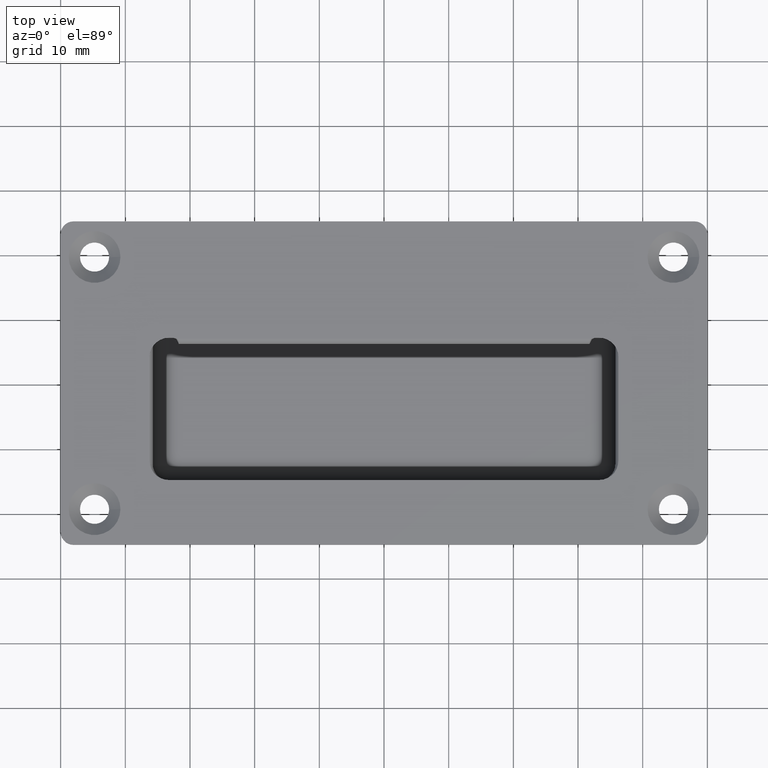
[diagram: clean part render]
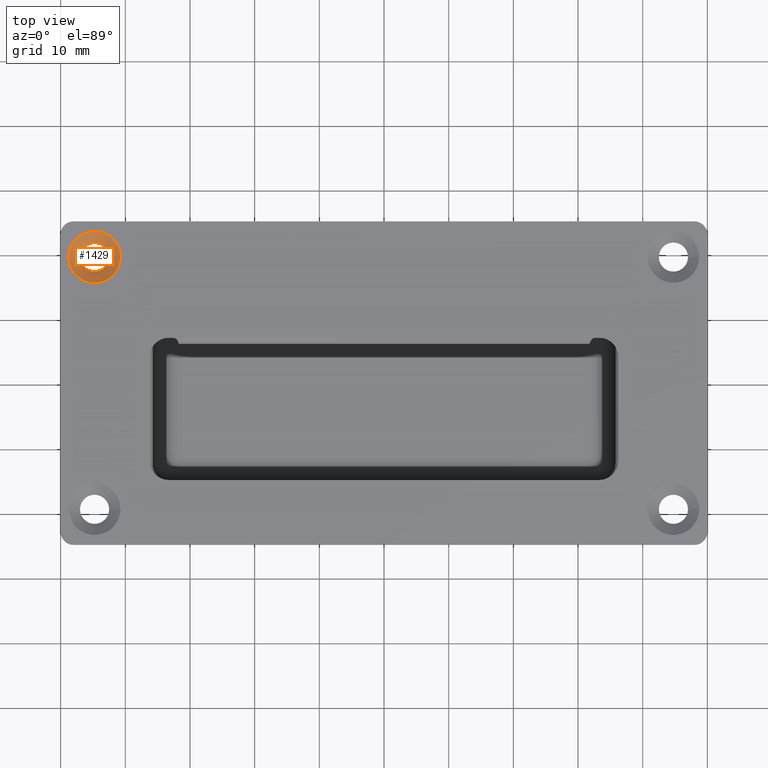
[diagram: same view with one face highlighted and labeled with its STEP entity id]
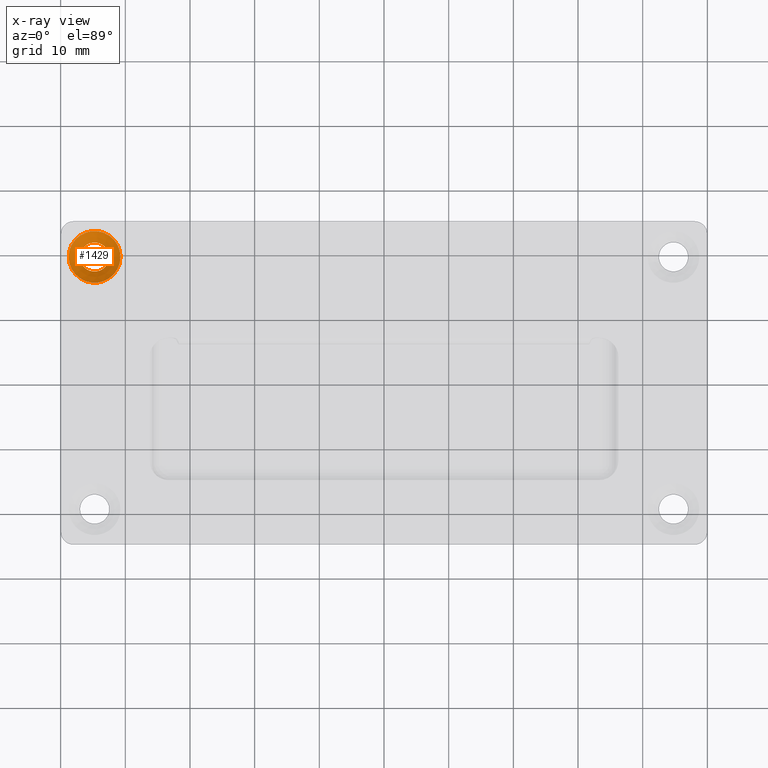
[diagram: x-ray of the same camera — body ghosted, the highlighted face saturated]
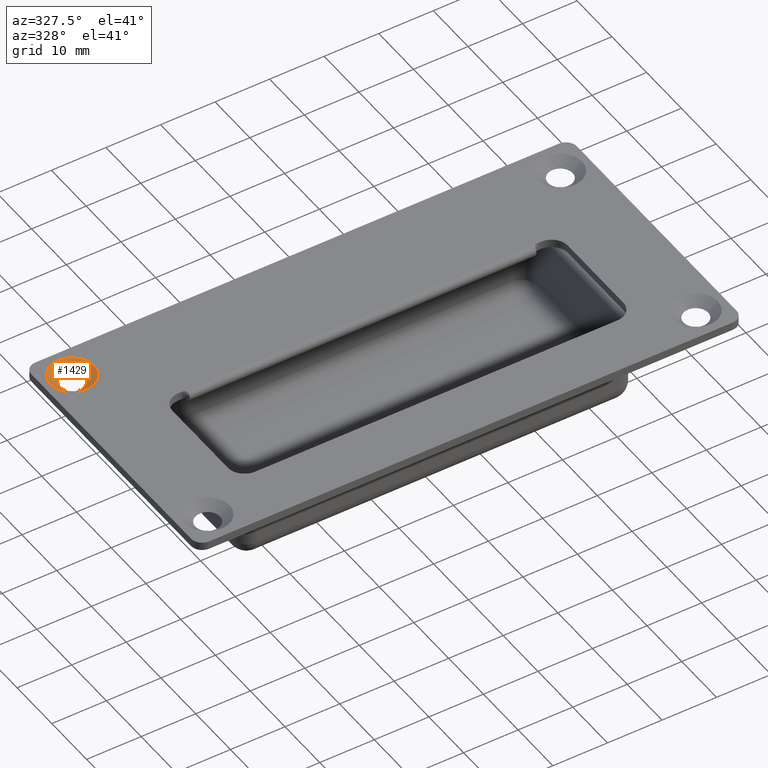
[diagram: same view with one face highlighted and labeled with its STEP entity id]
A machine part, top view. The second image highlights one B-rep face of the part: STEP entity #1429.
The next image is the same camera in x-ray: the body ghosted, the highlighted face saturated — about 0% of this face is hidden behind the body in this view.
A second angle (auxiliary view) of the same face is appended — the face is thin or edge-on in the first view.
In plain terms, the highlighted conical surface has half-angle 50 deg.
Its self-contained STEP definition (entity closure, byte-faithful):
#34=CONICAL_SURFACE('',#1542,3.125,50.);
#44=FACE_BOUND('',#459,.T.);
#357=FACE_OUTER_BOUND('',#458,.T.);
#458=EDGE_LOOP('',(#1061));
#459=EDGE_LOOP('',(#1062));
#567=CIRCLE('',#1534,4.);
#571=CIRCLE('',#1543,2.25);
#688=VERTEX_POINT('',#2484);
#693=VERTEX_POINT('',#2501);
#825=EDGE_CURVE('',#688,#688,#567,.T.);
#832=EDGE_CURVE('',#693,#693,#571,.T.);
#1061=ORIENTED_EDGE('',*,*,#825,.F.);
#1062=ORIENTED_EDGE('',*,*,#832,.F.);
#1429=ADVANCED_FACE('',(#357,#44),#34,.F.);
#1534=AXIS2_PLACEMENT_3D('',#2485,#1764,#1765);
#1542=AXIS2_PLACEMENT_3D('',#2500,#1783,#1784);
#1543=AXIS2_PLACEMENT_3D('',#2502,#1785,#1786);
#1764=DIRECTION('center_axis',(0.,0.,-1.));
#1765=DIRECTION('ref_axis',(1.,0.,0.));
#1783=DIRECTION('center_axis',(0.,0.,1.));
#1784=DIRECTION('ref_axis',(1.,0.,0.));
#1785=DIRECTION('center_axis',(0.,0.,1.));
#1786=DIRECTION('ref_axis',(1.,0.,0.));
#2484=CARTESIAN_POINT('',(-40.75,19.5,1.5));
#2485=CARTESIAN_POINT('Origin',(-44.75,19.5,1.5));
#2500=CARTESIAN_POINT('Origin',(-44.75,19.5,0.76578782271988));
#2501=CARTESIAN_POINT('',(-42.5,19.5,0.03157564543976));
#2502=CARTESIAN_POINT('Origin',(-44.75,19.5,0.0315756454397731));